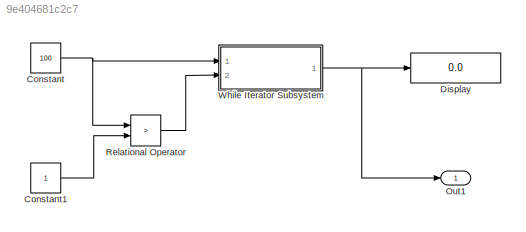
MODEL slx_9e404681c2c7
KIND model
CONFIG AbsTol = auto
CONFIG FixedStep = auto
CONFIG MaxStep = auto
CONFIG MinStep = auto
CONFIG RelTol = 1e-3
CONFIG SampleTimeConstraint = Unconstrained
CONFIG Solver = VariableStepAuto
CONFIG SolverMode = Auto
CONFIG SolverName = VariableStepAuto
CONFIG StartTime = 0.0
CONFIG StopTime = 10.0
BLOCK [Constant] Constant
  Value = 100
BLOCK [Constant] Constant1
BLOCK [Display] Display
  Decimation = 1
  Ports = [1]
BLOCK [Outport] Out1
  IconDisplay = Port number
BLOCK [RelationalOperator] Relational Operator
  InputSameDT = off
  Operator = >
  OutDataTypeStr = boolean
  Ports = [2, 1]
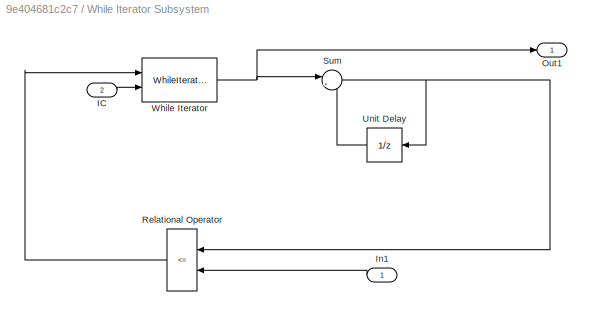
BLOCK [SubSystem] While Iterator Subsystem
  Ports = [2, 1]
  RequestExecContextInheritance = off
  TreatAsAtomicUnit = on
  Variant = off
BLOCK [Inport] While Iterator Subsystem/IC
  IconDisplay = Port number
  Port = 2
BLOCK [Inport] While Iterator Subsystem/In1
  IconDisplay = Port number
BLOCK [Outport] While Iterator Subsystem/Out1
  IconDisplay = Port number
BLOCK [RelationalOperator] While Iterator Subsystem/Relational Operator
  InputSameDT = off
  Operator = <=
  OutDataTypeStr = boolean
  Ports = [2, 1]
BLOCK [Sum] While Iterator Subsystem/Sum
  IconShape = round
  InputSameDT = off
  Inputs = |++
  OutDataTypeStr = Inherit: Inherit via internal rule
  Ports = [2, 1]
  SaturateOnIntegerOverflow = off
BLOCK [UnitDelay] While Iterator Subsystem/Unit Delay
  InputProcessing = Elements as channels (sample based)
  SampleTime = -1
BLOCK [WhileIterator] While Iterator Subsystem/While Iterator
  MaxIters = 1000
  OutputDataType = double
  Ports = [2, 1]
  ResetStates = reset
  ShowIterationPort = on
LINE Constant1:1 -> Relational Operator:2
NET Constant:1 -> Relational Operator:1, While Iterator Subsystem:1
LINE Relational Operator:1 -> While Iterator Subsystem:2
LINE While Iterator Subsystem/IC:1 -> While Iterator Subsystem/While Iterator:2
LINE While Iterator Subsystem/In1:1 -> While Iterator Subsystem/Relational Operator:2
LINE While Iterator Subsystem/Relational Operator:1 -> While Iterator Subsystem/While Iterator:1
NET While Iterator Subsystem/Sum:1 -> While Iterator Subsystem/Relational Operator:1, While Iterator Subsystem/Unit Delay:1
LINE While Iterator Subsystem/Unit Delay:1 -> While Iterator Subsystem/Sum:2
NET While Iterator Subsystem/While Iterator:1 -> While Iterator Subsystem/Out1:1, While Iterator Subsystem/Sum:1
NET While Iterator Subsystem:1 -> Display:1, Out1:1
note: NET lines group one-source signal fan-out (src -> all destinations, sorted); 1:1 wires keep LINE
